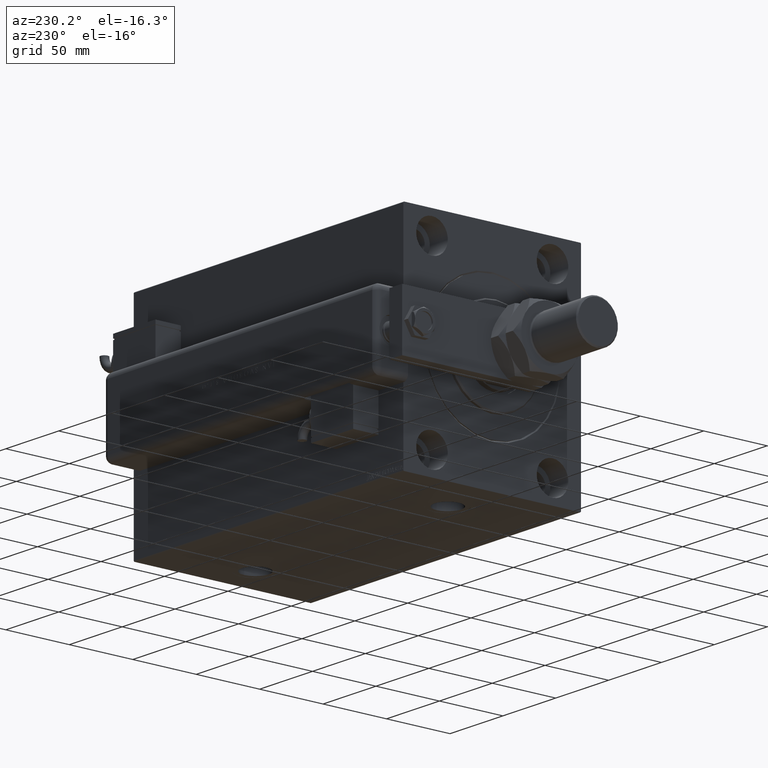
[diagram: clean part render]
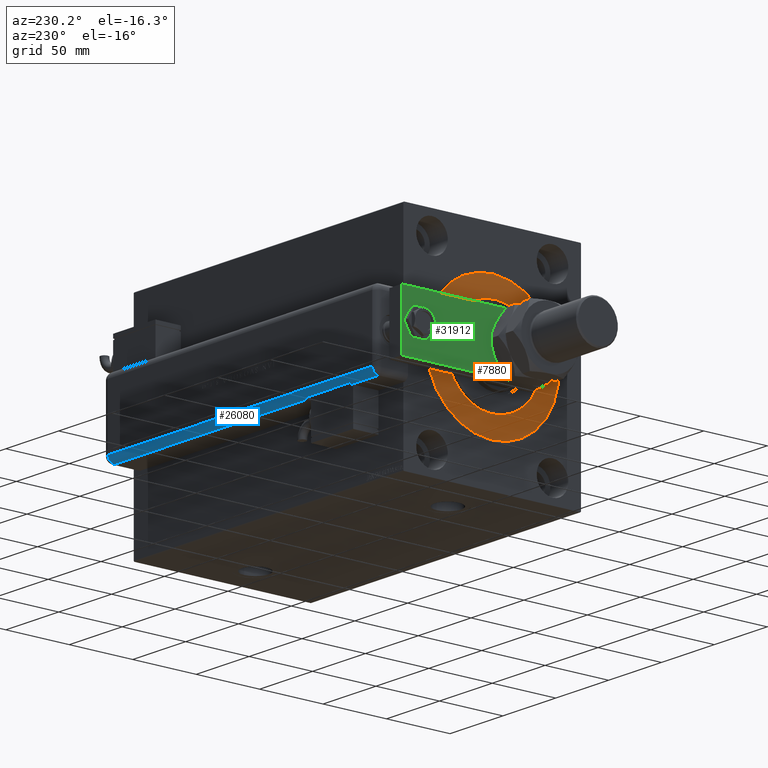
[diagram: same view with three faces highlighted in distinct colors, each labeled with its STEP entity id]
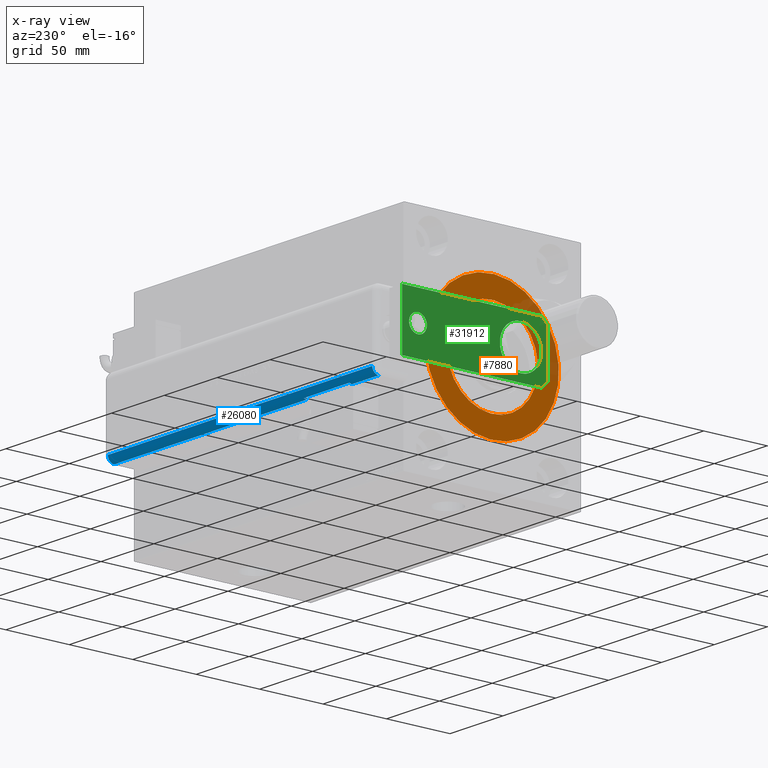
[diagram: x-ray of the same camera — body ghosted, the three highlighted faces saturated]
A machine part, auxiliary view with three faces highlighted in distinct colors.
The next image is the same camera in x-ray (body ghosted, the three faces saturated) — at least one of them is partly hidden behind the body in this view.
Their STEP definitions:

[orange] entity #7880 — the highlighted planar face has unit normal (1, 0, -0).
#2049 = CIRCLE ( 'NONE', #40812, 36.00000000000000000 ) ;
#3466 = FACE_BOUND ( 'NONE', #54812, .T. ) ;
#4100 = DIRECTION ( 'NONE',  ( 0.000000000000000000, 0.000000000000000000, -1.000000000000000000 ) ) ;
#4479 = CARTESIAN_POINT ( 'NONE',  ( 0.000000000000000000, 0.000000000000000000, 0.000000000000000000 ) ) ;
#5468 = CARTESIAN_POINT ( 'NONE',  ( 0.000000000000000000, 0.000000000000000000, -52.49999999999999289 ) ) ;
#5681 = VERTEX_POINT ( 'NONE', #5468 ) ;
#6309 = ORIENTED_EDGE ( 'NONE', *, *, #36894, .F. ) ;
#7002 = CARTESIAN_POINT ( 'NONE',  ( 0.000000000000000000, 6.429395695523603167E-15, 52.49999999999999289 ) ) ;
#7880 = ADVANCED_FACE ( 'NONE', ( #3466, #55427 ), #41746, .F. ) ;
#10008 = CARTESIAN_POINT ( 'NONE',  ( 0.000000000000000000, 0.000000000000000000, 0.000000000000000000 ) ) ;
#11530 = ORIENTED_EDGE ( 'NONE', *, *, #12639, .F. ) ;
#12070 = DIRECTION ( 'NONE',  ( -1.000000000000000000, 0.000000000000000000, 0.000000000000000000 ) ) ;
#12639 = EDGE_CURVE ( 'NONE', #48530, #28924, #50888, .T. ) ;
#12769 = CARTESIAN_POINT ( 'NONE',  ( 0.000000000000000000, 0.000000000000000000, 0.000000000000000000 ) ) ;
#16149 = AXIS2_PLACEMENT_3D ( 'NONE', #10008, #24022, #4100 ) ;
#21183 = DIRECTION ( 'NONE',  ( 0.000000000000000000, 0.000000000000000000, 1.000000000000000000 ) ) ;
#21269 = CARTESIAN_POINT ( 'NONE',  ( 0.000000000000000000, 4.408728476930470856E-15, -36.00000000000000000 ) ) ;
#22462 = AXIS2_PLACEMENT_3D ( 'NONE', #44764, #12070, #44160 ) ;
#22760 = DIRECTION ( 'NONE',  ( 0.000000000000000000, 0.000000000000000000, 1.000000000000000000 ) ) ;
#23528 = CIRCLE ( 'NONE', #55258, 52.49999999999999289 ) ;
#24022 = DIRECTION ( 'NONE',  ( 1.000000000000000000, -0.000000000000000000, 0.000000000000000000 ) ) ;
#24598 = VERTEX_POINT ( 'NONE', #7002 ) ;
#28762 = DIRECTION ( 'NONE',  ( 1.000000000000000000, -0.000000000000000000, 0.000000000000000000 ) ) ;
#28924 = VERTEX_POINT ( 'NONE', #21269 ) ;
#30094 = ORIENTED_EDGE ( 'NONE', *, *, #51726, .F. ) ;
#31740 = DIRECTION ( 'NONE',  ( -1.000000000000000000, 0.000000000000000000, 0.000000000000000000 ) ) ;
#31944 = CARTESIAN_POINT ( 'NONE',  ( 0.000000000000000000, 0.000000000000000000, 36.00000000000000000 ) ) ;
#36894 = EDGE_CURVE ( 'NONE', #5681, #24598, #23528, .T. ) ;
#40812 = AXIS2_PLACEMENT_3D ( 'NONE', #4479, #28762, #47729 ) ;
#41441 = DIRECTION ( 'NONE',  ( -1.000000000000000000, 0.000000000000000000, 0.000000000000000000 ) ) ;
#41746 = PLANE ( 'NONE',  #52733 ) ;
#43197 = EDGE_LOOP ( 'NONE', ( #6309, #51452 ) ) ;
#44160 = DIRECTION ( 'NONE',  ( 0.000000000000000000, 0.000000000000000000, 1.000000000000000000 ) ) ;
#44764 = CARTESIAN_POINT ( 'NONE',  ( 0.000000000000000000, 0.000000000000000000, 0.000000000000000000 ) ) ;
#47729 = DIRECTION ( 'NONE',  ( 0.000000000000000000, 0.000000000000000000, -1.000000000000000000 ) ) ;
#48530 = VERTEX_POINT ( 'NONE', #31944 ) ;
#50888 = CIRCLE ( 'NONE', #16149, 36.00000000000000000 ) ;
#51268 = CIRCLE ( 'NONE', #22462, 52.49999999999999289 ) ;
#51452 = ORIENTED_EDGE ( 'NONE', *, *, #58267, .F. ) ;
#51726 = EDGE_CURVE ( 'NONE', #28924, #48530, #2049, .T. ) ;
#52733 = AXIS2_PLACEMENT_3D ( 'NONE', #56044, #41441, #22760 ) ;
#54812 = EDGE_LOOP ( 'NONE', ( #11530, #30094 ) ) ;
#55258 = AXIS2_PLACEMENT_3D ( 'NONE', #12769, #31740, #21183 ) ;
#55427 = FACE_OUTER_BOUND ( 'NONE', #43197, .T. ) ;
#56044 = CARTESIAN_POINT ( 'NONE',  ( 0.000000000000000000, 0.000000000000000000, 0.000000000000000000 ) ) ;
#58267 = EDGE_CURVE ( 'NONE', #24598, #5681, #51268, .T. ) ;

[blue] entity #26080 — the highlighted cylindrical surface (edge-blend (fillet) strip) has radius 5 mm, axis along (1, -0, -0).
#3430 = CARTESIAN_POINT ( 'NONE',  ( -23.99999999999999645, 20.79999999999998295, 255.0000000000000000 ) ) ;
#8644 = DIRECTION ( 'NONE',  ( -0.000000000000000000, -0.000000000000000000, 1.000000000000000000 ) ) ;
#9267 = DIRECTION ( 'NONE',  ( 1.000000000000000000, 0.000000000000000000, 0.000000000000000000 ) ) ;
#10945 = VERTEX_POINT ( 'NONE', #35797 ) ;
#12650 = VERTEX_POINT ( 'NONE', #51998 ) ;
#12799 = AXIS2_PLACEMENT_3D ( 'NONE', #59758, #36102, #54185 ) ;
#13258 = AXIS2_PLACEMENT_3D ( 'NONE', #3430, #46064, #31126 ) ;
#13312 = CARTESIAN_POINT ( 'NONE',  ( -28.99999999999999645, 20.79999999999998295, 255.0000000000000000 ) ) ;
#13577 = VECTOR ( 'NONE', #21527, 1000.000000000000000 ) ;
#14325 = CIRCLE ( 'NONE', #38187, 5.000000000000000888 ) ;
#15412 = EDGE_CURVE ( 'NONE', #22226, #25609, #50025, .T. ) ;
#16833 = DIRECTION ( 'NONE',  ( -0.000000000000000000, -0.000000000000000000, 1.000000000000000000 ) ) ;
#16865 = EDGE_CURVE ( 'NONE', #55814, #28586, #37175, .T. ) ;
#16873 = CARTESIAN_POINT ( 'NONE',  ( -28.48998886412872267, 22.99999999999998934, 255.0000000000000000 ) ) ;
#19771 = ORIENTED_EDGE ( 'NONE', *, *, #59230, .F. ) ;
#21466 = VECTOR ( 'NONE', #8644, 1000.000000000000000 ) ;
#21494 = ORIENTED_EDGE ( 'NONE', *, *, #28636, .F. ) ;
#21527 = DIRECTION ( 'NONE',  ( 0.000000000000000000, 0.000000000000000000, -1.000000000000000000 ) ) ;
#22226 = VERTEX_POINT ( 'NONE', #44040 ) ;
#22467 = LINE ( 'NONE', #16873, #13577 ) ;
#22975 = CARTESIAN_POINT ( 'NONE',  ( -23.99999999999999645, 20.79999999999998295, 230.0000000000000000 ) ) ;
#23358 = ORIENTED_EDGE ( 'NONE', *, *, #15412, .F. ) ;
#23385 = VECTOR ( 'NONE', #26455, 1000.000000000000000 ) ;
#23471 = ORIENTED_EDGE ( 'NONE', *, *, #16865, .F. ) ;
#25177 = VECTOR ( 'NONE', #52195, 1000.000000000000000 ) ;
#25609 = VERTEX_POINT ( 'NONE', #26849 ) ;
#26080 = ADVANCED_FACE ( 'NONE', ( #40782 ), #31439, .T. ) ;
#26286 = ORIENTED_EDGE ( 'NONE', *, *, #26342, .F. ) ;
#26322 = CARTESIAN_POINT ( 'NONE',  ( -28.99999999999999645, 20.79999999999998295, 230.0000000000000000 ) ) ;
#26342 = EDGE_CURVE ( 'NONE', #25609, #33622, #51882, .T. ) ;
#26455 = DIRECTION ( 'NONE',  ( 0.000000000000000000, 0.000000000000000000, -1.000000000000000000 ) ) ;
#26849 = CARTESIAN_POINT ( 'NONE',  ( -28.99999999999999645, 20.79999999999998295, 187.0000000000000000 ) ) ;
#28586 = VERTEX_POINT ( 'NONE', #53429 ) ;
#28636 = EDGE_CURVE ( 'NONE', #35649, #10945, #14325, .T. ) ;
#29172 = CARTESIAN_POINT ( 'NONE',  ( -23.99999999999999645, 20.79999999999998295, 255.0000000000000000 ) ) ;
#29488 = DIRECTION ( 'NONE',  ( -0.000000000000000000, -0.000000000000000000, 1.000000000000000000 ) ) ;
#31123 = CARTESIAN_POINT ( 'NONE',  ( -23.99999999999999645, 20.79999999999998295, 187.0000000000000000 ) ) ;
#31126 = DIRECTION ( 'NONE',  ( -1.000000000000000000, 0.000000000000000000, 0.000000000000000000 ) ) ;
#31439 = CYLINDRICAL_SURFACE ( 'NONE', #13258, 5.000000000000000888 ) ;
#31658 = CARTESIAN_POINT ( 'NONE',  ( -23.99999999999999645, 25.79999999999998295, 255.0000000000000000 ) ) ;
#32654 = CIRCLE ( 'NONE', #12799, 5.000000000000000888 ) ;
#33411 = ORIENTED_EDGE ( 'NONE', *, *, #35504, .F. ) ;
#33622 = VERTEX_POINT ( 'NONE', #53510 ) ;
#35504 = EDGE_CURVE ( 'NONE', #10945, #55814, #36077, .T. ) ;
#35649 = VERTEX_POINT ( 'NONE', #49108 ) ;
#35666 = ORIENTED_EDGE ( 'NONE', *, *, #58540, .F. ) ;
#35797 = CARTESIAN_POINT ( 'NONE',  ( -28.99999999999999645, 20.79999999999998295, 255.0000000000000000 ) ) ;
#36077 = LINE ( 'NONE', #40149, #23385 ) ;
#36102 = DIRECTION ( 'NONE',  ( -0.000000000000000000, -0.000000000000000000, 1.000000000000000000 ) ) ;
#37028 = DIRECTION ( 'NONE',  ( -1.000000000000000000, 4.163336342344336238E-15, 0.000000000000000000 ) ) ;
#37175 = CIRCLE ( 'NONE', #42168, 5.000000000000000888 ) ;
#38187 = AXIS2_PLACEMENT_3D ( 'NONE', #29172, #29488, #48454 ) ;
#40149 = CARTESIAN_POINT ( 'NONE',  ( -28.99999999999999645, 20.79999999999998295, 255.0000000000000000 ) ) ;
#40782 = FACE_OUTER_BOUND ( 'NONE', #56192, .T. ) ;
#42168 = AXIS2_PLACEMENT_3D ( 'NONE', #22975, #60926, #9267 ) ;
#42955 = EDGE_CURVE ( 'NONE', #12650, #33622, #32654, .T. ) ;
#43348 = ORIENTED_EDGE ( 'NONE', *, *, #42955, .T. ) ;
#44040 = CARTESIAN_POINT ( 'NONE',  ( -28.48998886412872267, 22.99999999999998934, 187.0000000000000000 ) ) ;
#46064 = DIRECTION ( 'NONE',  ( 0.000000000000000000, 0.000000000000000000, -1.000000000000000000 ) ) ;
#48059 = AXIS2_PLACEMENT_3D ( 'NONE', #31123, #16833, #37028 ) ;
#48454 = DIRECTION ( 'NONE',  ( -1.000000000000000000, 0.000000000000000000, 0.000000000000000000 ) ) ;
#49108 = CARTESIAN_POINT ( 'NONE',  ( -23.99999999999999645, 25.79999999999998295, 255.0000000000000000 ) ) ;
#50025 = CIRCLE ( 'NONE', #48059, 5.000000000000000888 ) ;
#51882 = LINE ( 'NONE', #13312, #25177 ) ;
#51998 = CARTESIAN_POINT ( 'NONE',  ( -23.99999999999999645, 25.79999999999998295, 5.000000000000004441 ) ) ;
#52195 = DIRECTION ( 'NONE',  ( 0.000000000000000000, 0.000000000000000000, -1.000000000000000000 ) ) ;
#53429 = CARTESIAN_POINT ( 'NONE',  ( -28.48998886412872267, 22.99999999999998934, 230.0000000000000000 ) ) ;
#53510 = CARTESIAN_POINT ( 'NONE',  ( -28.99999999999999645, 20.79999999999998295, 5.000000000000004441 ) ) ;
#54185 = DIRECTION ( 'NONE',  ( -1.000000000000000000, 0.000000000000000000, 0.000000000000000000 ) ) ;
#55312 = LINE ( 'NONE', #31658, #21466 ) ;
#55814 = VERTEX_POINT ( 'NONE', #26322 ) ;
#56192 = EDGE_LOOP ( 'NONE', ( #23358, #19771, #23471, #33411, #21494, #35666, #43348, #26286 ) ) ;
#58540 = EDGE_CURVE ( 'NONE', #12650, #35649, #55312, .T. ) ;
#59230 = EDGE_CURVE ( 'NONE', #28586, #22226, #22467, .T. ) ;
#59758 = CARTESIAN_POINT ( 'NONE',  ( -23.99999999999999645, 20.79999999999998295, 5.000000000000004441 ) ) ;
#60926 = DIRECTION ( 'NONE',  ( 0.000000000000000000, -0.000000000000000000, -1.000000000000000000 ) ) ;

[green] entity #31912 — the highlighted planar face has unit normal (1, 0, -0).
#692 = CIRCLE ( 'NONE', #13485, 16.50000000000000000 ) ;
#1385 = CARTESIAN_POINT ( 'NONE',  ( 7.000000000000000000, 102.5000000000000142, 0.000000000000000000 ) ) ;
#2657 = FACE_BOUND ( 'NONE', #43967, .T. ) ;
#2949 = LINE ( 'NONE', #16980, #49277 ) ;
#3167 = VERTEX_POINT ( 'NONE', #47986 ) ;
#3196 = LINE ( 'NONE', #40546, #44191 ) ;
#3697 = ORIENTED_EDGE ( 'NONE', *, *, #60969, .T. ) ;
#5425 = CARTESIAN_POINT ( 'NONE',  ( -7.000000000000000000, 102.5000000000000142, 0.000000000000000000 ) ) ;
#6955 = LINE ( 'NONE', #11631, #31189 ) ;
#7640 = DIRECTION ( 'NONE',  ( -0.000000000000000000, 0.000000000000000000, 1.000000000000000000 ) ) ;
#7738 = DIRECTION ( 'NONE',  ( 1.000000000000000000, 0.000000000000000000, 0.000000000000000000 ) ) ;
#8792 = CARTESIAN_POINT ( 'NONE',  ( -17.50000000000000355, 0.000000000000000000, 0.000000000000000000 ) ) ;
#10783 = CARTESIAN_POINT ( 'NONE',  ( 0.000000000000000000, 21.50000000000000355, 0.000000000000000000 ) ) ;
#10832 = ORIENTED_EDGE ( 'NONE', *, *, #42340, .F. ) ;
#11631 = CARTESIAN_POINT ( 'NONE',  ( -22.50000000000000355, 115.0000000000000000, 0.000000000000000000 ) ) ;
#12307 = CARTESIAN_POINT ( 'NONE',  ( 0.000000000000000000, 0.000000000000000000, 0.000000000000000000 ) ) ;
#12914 = CARTESIAN_POINT ( 'NONE',  ( 17.49999999999997868, 0.000000000000000000, 0.000000000000000000 ) ) ;
#13034 = ORIENTED_EDGE ( 'NONE', *, *, #54767, .T. ) ;
#13485 = AXIS2_PLACEMENT_3D ( 'NONE', #59814, #17517, #50781 ) ;
#15046 = DIRECTION ( 'NONE',  ( 1.000000000000000000, 0.000000000000000000, 0.000000000000000000 ) ) ;
#16610 = DIRECTION ( 'NONE',  ( -6.033820786006285224E-17, -1.000000000000000000, 0.000000000000000000 ) ) ;
#16980 = CARTESIAN_POINT ( 'NONE',  ( 22.50000000000001066, 0.000000000000000000, 0.000000000000000000 ) ) ;
#17082 = LINE ( 'NONE', #38973, #36603 ) ;
#17096 = EDGE_CURVE ( 'NONE', #44555, #20194, #58056, .T. ) ;
#17295 = FACE_OUTER_BOUND ( 'NONE', #50202, .T. ) ;
#17517 = DIRECTION ( 'NONE',  ( 0.000000000000000000, 0.000000000000000000, 1.000000000000000000 ) ) ;
#18480 = DIRECTION ( 'NONE',  ( 0.000000000000000000, 0.000000000000000000, 1.000000000000000000 ) ) ;
#19352 = DIRECTION ( 'NONE',  ( -1.000000000000000000, 0.000000000000000000, 0.000000000000000000 ) ) ;
#19485 = ORIENTED_EDGE ( 'NONE', *, *, #57427, .T. ) ;
#19886 = AXIS2_PLACEMENT_3D ( 'NONE', #51227, #32560, #15046 ) ;
#20006 = ORIENTED_EDGE ( 'NONE', *, *, #36185, .F. ) ;
#20122 = DIRECTION ( 'NONE',  ( 0.000000000000000000, 0.000000000000000000, 1.000000000000000000 ) ) ;
#20194 = VERTEX_POINT ( 'NONE', #5425 ) ;
#20492 = CARTESIAN_POINT ( 'NONE',  ( -22.50000000000001066, 5.000000000000031974, 0.000000000000000000 ) ) ;
#21566 = DIRECTION ( 'NONE',  ( -0.7071067811865455743, 0.7071067811865493491, -0.000000000000000000 ) ) ;
#21743 = ORIENTED_EDGE ( 'NONE', *, *, #17096, .T. ) ;
#22413 = AXIS2_PLACEMENT_3D ( 'NONE', #12307, #7640, #30073 ) ;
#22858 = VERTEX_POINT ( 'NONE', #39837 ) ;
#25989 = VERTEX_POINT ( 'NONE', #44012 ) ;
#26406 = CIRCLE ( 'NONE', #55175, 16.50000000000000000 ) ;
#26800 = VECTOR ( 'NONE', #54356, 1000.000000000000114 ) ;
#27703 = CARTESIAN_POINT ( 'NONE',  ( 22.50000000000000000, 115.0000000000000000, 0.000000000000000000 ) ) ;
#27769 = LINE ( 'NONE', #56682, #37463 ) ;
#30073 = DIRECTION ( 'NONE',  ( 1.000000000000000000, 0.000000000000000000, 0.000000000000000000 ) ) ;
#31189 = VECTOR ( 'NONE', #16610, 1000.000000000000000 ) ;
#31209 = AXIS2_PLACEMENT_3D ( 'NONE', #46462, #18480, #61081 ) ;
#31303 = LINE ( 'NONE', #45014, #26800 ) ;
#31912 = ADVANCED_FACE ( 'NONE', ( #17295, #44397, #2657 ), #53725, .F. ) ;
#32560 = DIRECTION ( 'NONE',  ( 0.000000000000000000, 0.000000000000000000, 1.000000000000000000 ) ) ;
#34654 = CIRCLE ( 'NONE', #19886, 7.000000000000000000 ) ;
#36185 = EDGE_CURVE ( 'NONE', #3167, #54203, #2949, .T. ) ;
#36563 = DIRECTION ( 'NONE',  ( -9.050731179009427836E-17, 1.000000000000000000, 0.000000000000000000 ) ) ;
#36603 = VECTOR ( 'NONE', #7738, 1000.000000000000000 ) ;
#37379 = CARTESIAN_POINT ( 'NONE',  ( -16.50000000000000000, 21.50000000000000355, 0.000000000000000000 ) ) ;
#37463 = VECTOR ( 'NONE', #19352, 1000.000000000000000 ) ;
#37512 = VERTEX_POINT ( 'NONE', #20492 ) ;
#38115 = EDGE_CURVE ( 'NONE', #54203, #25989, #27769, .T. ) ;
#38223 = ORIENTED_EDGE ( 'NONE', *, *, #45236, .T. ) ;
#38973 = CARTESIAN_POINT ( 'NONE',  ( -22.50000000000001066, 0.000000000000000000, 0.000000000000000000 ) ) ;
#39837 = CARTESIAN_POINT ( 'NONE',  ( 16.50000000000000000, 21.50000000000000711, 0.000000000000000000 ) ) ;
#40546 = CARTESIAN_POINT ( 'NONE',  ( -17.50000000000000355, 0.000000000000000000, 0.000000000000000000 ) ) ;
#40637 = EDGE_LOOP ( 'NONE', ( #47481, #21743 ) ) ;
#42340 = EDGE_CURVE ( 'NONE', #50030, #52434, #17082, .T. ) ;
#43773 = DIRECTION ( 'NONE',  ( 1.000000000000000000, 0.000000000000000000, 0.000000000000000000 ) ) ;
#43967 = EDGE_LOOP ( 'NONE', ( #19485, #3697 ) ) ;
#44012 = CARTESIAN_POINT ( 'NONE',  ( -22.50000000000000355, 115.0000000000000000, 0.000000000000000000 ) ) ;
#44191 = VECTOR ( 'NONE', #21566, 1000.000000000000114 ) ;
#44369 = ORIENTED_EDGE ( 'NONE', *, *, #38115, .F. ) ;
#44397 = FACE_BOUND ( 'NONE', #40637, .T. ) ;
#44555 = VERTEX_POINT ( 'NONE', #1385 ) ;
#45014 = CARTESIAN_POINT ( 'NONE',  ( 22.50000000000001066, 5.000000000000004441, 0.000000000000000000 ) ) ;
#45236 = EDGE_CURVE ( 'NONE', #3167, #52434, #31303, .T. ) ;
#45985 = EDGE_CURVE ( 'NONE', #20194, #44555, #34654, .T. ) ;
#46462 = CARTESIAN_POINT ( 'NONE',  ( 1.963948872468190046E-17, 102.5000000000000142, 0.000000000000000000 ) ) ;
#47481 = ORIENTED_EDGE ( 'NONE', *, *, #45985, .T. ) ;
#47986 = CARTESIAN_POINT ( 'NONE',  ( 22.50000000000001066, 5.000000000000003553, 0.000000000000000000 ) ) ;
#49277 = VECTOR ( 'NONE', #36563, 1000.000000000000000 ) ;
#50030 = VERTEX_POINT ( 'NONE', #8792 ) ;
#50202 = EDGE_LOOP ( 'NONE', ( #10832, #13034, #54458, #44369, #20006, #38223 ) ) ;
#50781 = DIRECTION ( 'NONE',  ( 1.000000000000000000, 0.000000000000000000, 0.000000000000000000 ) ) ;
#51227 = CARTESIAN_POINT ( 'NONE',  ( 1.963948872468190046E-17, 102.5000000000000142, 0.000000000000000000 ) ) ;
#52434 = VERTEX_POINT ( 'NONE', #12914 ) ;
#53725 = PLANE ( 'NONE',  #22413 ) ;
#54203 = VERTEX_POINT ( 'NONE', #27703 ) ;
#54356 = DIRECTION ( 'NONE',  ( -0.7071067811865493491, -0.7071067811865455743, -0.000000000000000000 ) ) ;
#54458 = ORIENTED_EDGE ( 'NONE', *, *, #54649, .F. ) ;
#54649 = EDGE_CURVE ( 'NONE', #25989, #37512, #6955, .T. ) ;
#54767 = EDGE_CURVE ( 'NONE', #50030, #37512, #3196, .T. ) ;
#55175 = AXIS2_PLACEMENT_3D ( 'NONE', #10783, #20122, #43773 ) ;
#56682 = CARTESIAN_POINT ( 'NONE',  ( 22.50000000000000000, 115.0000000000000000, 0.000000000000000000 ) ) ;
#57427 = EDGE_CURVE ( 'NONE', #59319, #22858, #26406, .T. ) ;
#58056 = CIRCLE ( 'NONE', #31209, 7.000000000000000000 ) ;
#59319 = VERTEX_POINT ( 'NONE', #37379 ) ;
#59814 = CARTESIAN_POINT ( 'NONE',  ( 0.000000000000000000, 21.50000000000000355, 0.000000000000000000 ) ) ;
#60969 = EDGE_CURVE ( 'NONE', #22858, #59319, #692, .T. ) ;
#61081 = DIRECTION ( 'NONE',  ( 1.000000000000000000, 0.000000000000000000, 0.000000000000000000 ) ) ;